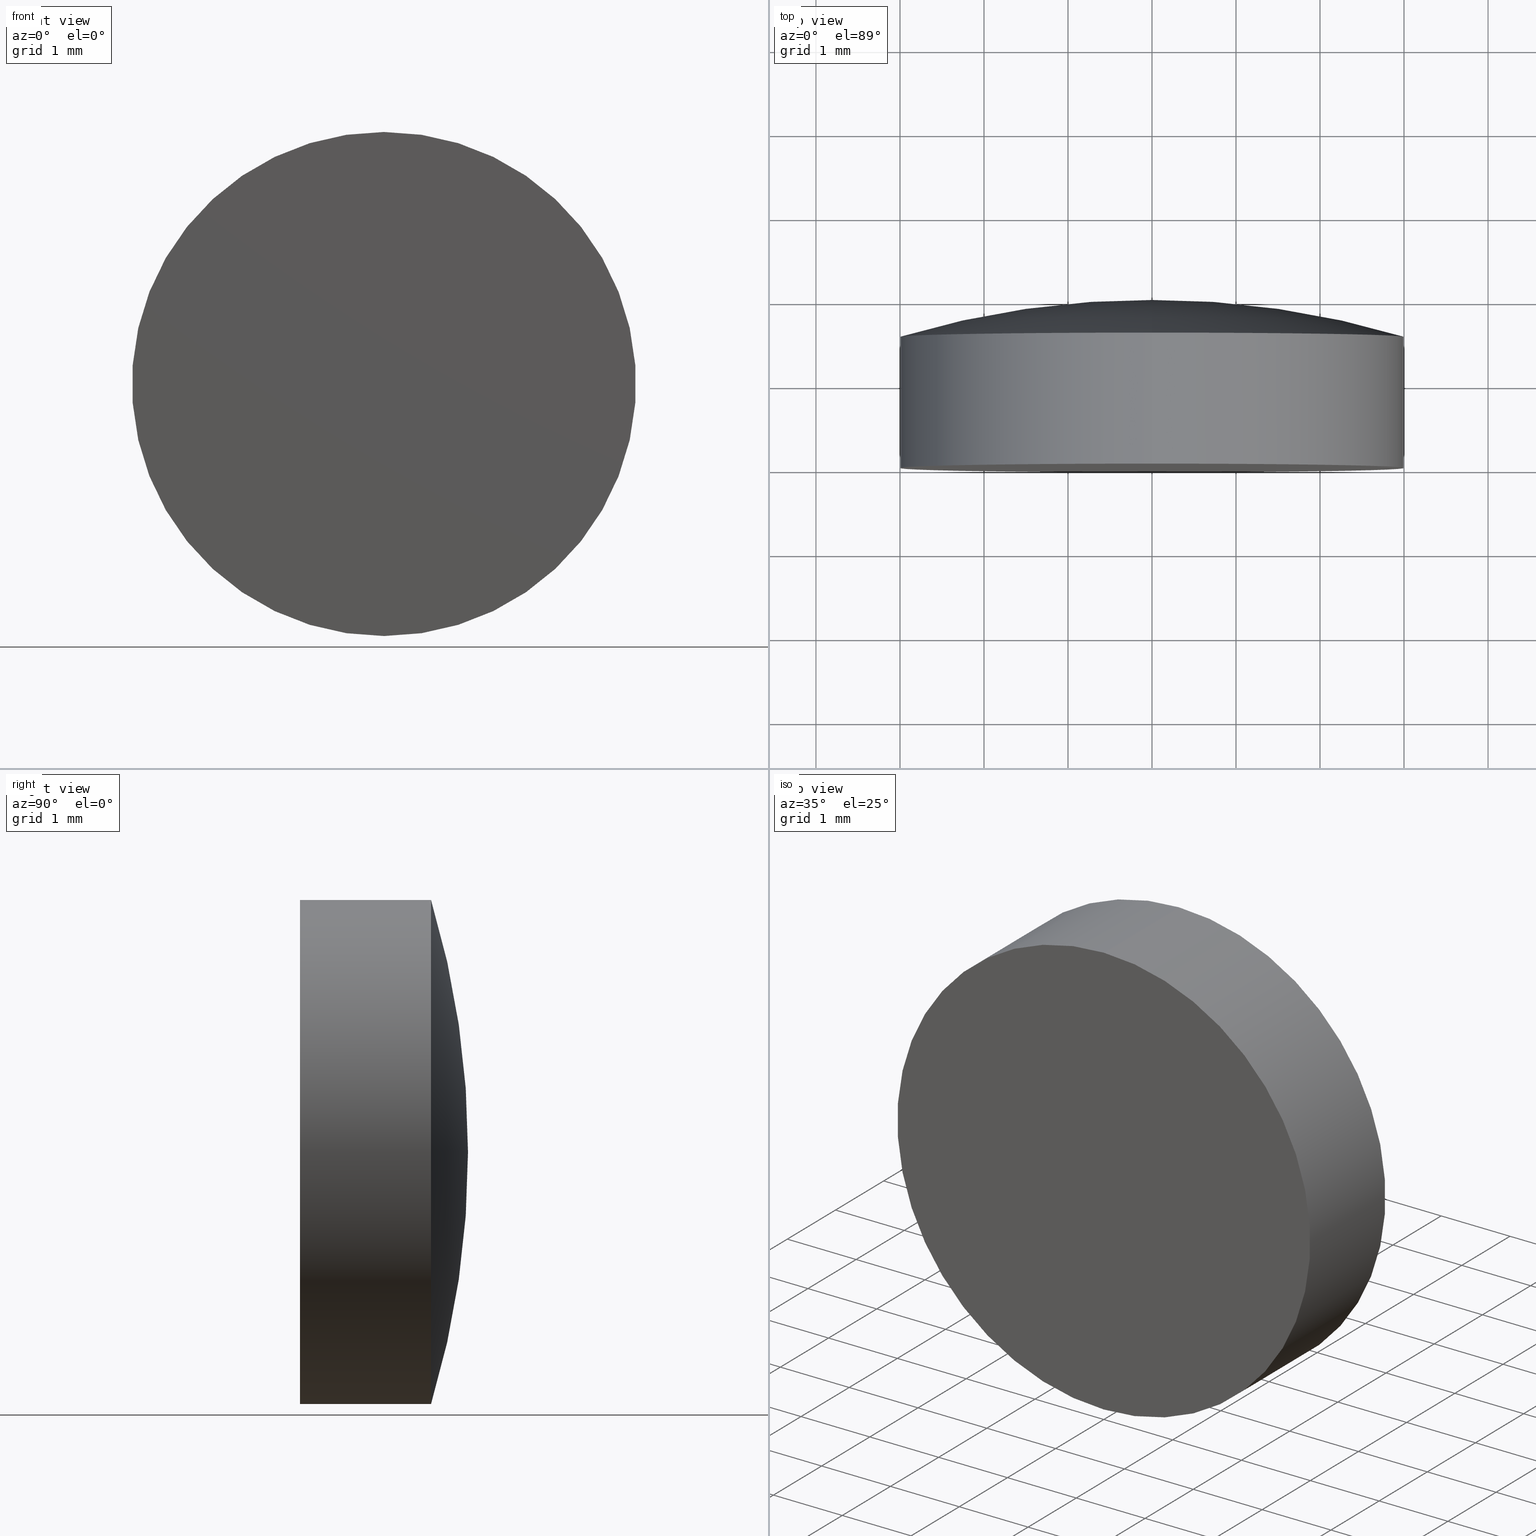
[diagram: canonical four-view strip — front | top / right | iso, engineering-drawing reading convention]
A machine part, canonical four-view strip (front | top / right | iso — engineering-drawing reading convention). The complete STEP part file that produces these views, byte-faithful:
ISO-10303-21;
HEADER;
FILE_DESCRIPTION (( 'STEP AP203' ),
    '1' );
FILE_NAME ('100540.STEP',
    '2024-05-08T08:49:46',
    ( '' ),
    ( '' ),
    'SwSTEP 2.0',
    'SolidWorks 2020',
    '' );
FILE_SCHEMA (( 'CONFIG_CONTROL_DESIGN' ));
ENDSEC;

DATA;
#1 = APPROVAL_ROLE ( '' ) ;
#2 = AXIS2_PLACEMENT_3D ( 'NONE', #20, #97, #160 ) ;
#3 = PRODUCT_RELATED_PRODUCT_CATEGORY ( 'detail', '', ( #123 ) ) ;
#4 = APPLICATION_CONTEXT ( 'configuration controlled 3d designs of mechanical parts and assemblies' ) ;
#5 = EDGE_CURVE ( 'NONE', #150, #135, #12, .T. ) ;
#6 = CYLINDRICAL_SURFACE ( 'NONE', #139, 3.000000000000000000 ) ;
#7 = ORIENTED_EDGE ( 'NONE', *, *, #175, .T. ) ;
#8 = APPLICATION_PROTOCOL_DEFINITION ( 'international standard', 'config_control_design', 1994, #16 ) ;
#9 = ORIENTED_EDGE ( 'NONE', *, *, #48, .F. ) ;
#10 = APPROVAL_PERSON_ORGANIZATION ( #32, #176, #92 ) ;
#11 = CC_DESIGN_DATE_AND_TIME_ASSIGNMENT ( #89, #102, ( #174 ) ) ;
#12 = CIRCLE ( 'NONE', #111, 3.000000000000000000 ) ;
#13 = PERSON_AND_ORGANIZATION ( #161, #50 ) ;
#14 = DIRECTION ( 'NONE',  ( 0.000000000000000000, 1.000000000000000000, 0.000000000000000000 ) ) ;
#15 = DIRECTION ( 'NONE',  ( -0.000000000000000000, -1.000000000000000000, -0.000000000000000000 ) ) ;
#16 = APPLICATION_CONTEXT ( 'configuration controlled 3d designs of mechanical parts and assemblies' ) ;
#17 = PERSON_AND_ORGANIZATION ( #161, #50 ) ;
#18 = ADVANCED_FACE ( 'NONE', ( #87 ), #40, .F. ) ;
#19 = LOCAL_TIME ( 16, 49, 46.00000000000000000, #188 ) ;
#20 = CARTESIAN_POINT ( 'NONE',  ( 0.000000000000000000, -8.359992091227860911, -0.01280115995324552884 ) ) ;
#21 = CARTESIAN_POINT ( 'NONE',  ( 0.000000000000000000, 0.000000000000000000, 0.000000000000000000 ) ) ;
#22 = CARTESIAN_POINT ( 'NONE',  ( 0.000000000000000000, 0.000000000000000000, 0.000000000000000000 ) ) ;
#23 = DIRECTION ( 'NONE',  ( -0.000000000000000000, -1.000000000000000000, -0.000000000000000000 ) ) ;
#24 = ORIENTED_EDGE ( 'NONE', *, *, #5, .F. ) ;
#25 = EDGE_CURVE ( 'NONE', #150, #28, #138, .T. ) ;
#26 = AXIS2_PLACEMENT_3D ( 'NONE', #194, #162, #38 ) ;
#27 = PERSON_AND_ORGANIZATION ( #161, #50 ) ;
#28 = VERTEX_POINT ( 'NONE', #166 ) ;
#29 = AXIS2_PLACEMENT_3D ( 'NONE', #200, #58, #31 ) ;
#30 = CALENDAR_DATE ( 2024, 8, 5 ) ;
#31 = DIRECTION ( 'NONE',  ( 0.000000000000000000, 0.000000000000000000, -1.000000000000000000 ) ) ;
#32 = PERSON_AND_ORGANIZATION ( #161, #50 ) ;
#33 = COORDINATED_UNIVERSAL_TIME_OFFSET ( 8, 0, .AHEAD. ) ;
#34 = LOCAL_TIME ( 16, 49, 46.00000000000000000, #33 ) ;
#35 = VECTOR ( 'NONE', #56, 1000.000000000000000 ) ;
#36 = CC_DESIGN_PERSON_AND_ORGANIZATION_ASSIGNMENT ( #27, #118, ( #73 ) ) ;
#37 = DIRECTION ( 'NONE',  ( -0.000000000000000000, -1.000000000000000000, -0.000000000000000000 ) ) ;
#38 = DIRECTION ( 'NONE',  ( 1.000000000000000000, 0.000000000000000000, 0.000000000000000000 ) ) ;
#39 = DIRECTION ( 'NONE',  ( -0.000000000000000000, -1.000000000000000000, -0.000000000000000000 ) ) ;
#40 = PLANE ( 'NONE',  #64 ) ;
#41 = COORDINATED_UNIVERSAL_TIME_OFFSET ( 8, 0, .AHEAD. ) ;
#42 = CARTESIAN_POINT ( 'NONE',  ( 0.000000000000000000, 0.000000000000000000, 0.000000000000000000 ) ) ;
#43 = APPROVAL_DATE_TIME ( #143, #176 ) ;
#44 = VERTEX_POINT ( 'NONE', #141 ) ;
#45 = CIRCLE ( 'NONE', #2, 10.35999999999999766 ) ;
#46 = TOROIDAL_SURFACE ( 'NONE', #151, 0.01280115995324552884, 10.35999999999999766 ) ;
#47 = CC_DESIGN_DATE_AND_TIME_ASSIGNMENT ( #140, #125, ( #73 ) ) ;
#48 = EDGE_CURVE ( 'NONE', #75, #28, #128, .T. ) ;
#49 = CIRCLE ( 'NONE', #159, 3.000000000000000000 ) ;
#50 = ORGANIZATION ( 'δָ��', 'δָ��', '' ) ;
#51 = AXIS2_PLACEMENT_3D ( 'NONE', #145, #52, #146 ) ;
#52 = DIRECTION ( 'NONE',  ( -0.000000000000000000, -1.000000000000000000, -0.000000000000000000 ) ) ;
#53 = ORIENTED_EDGE ( 'NONE', *, *, #25, .T. ) ;
#54 = CC_DESIGN_APPROVAL ( #176, ( #157 ) ) ;
#55 = PERSON_AND_ORGANIZATION ( #161, #50 ) ;
#56 = DIRECTION ( 'NONE',  ( -0.000000000000000000, -1.000000000000000000, -0.000000000000000000 ) ) ;
#57 = CALENDAR_DATE ( 2024, 8, 5 ) ;
#58 = DIRECTION ( 'NONE',  ( -0.000000000000000000, -1.000000000000000000, -0.000000000000000000 ) ) ;
#59 = SECURITY_CLASSIFICATION_LEVEL ( 'unclassified' ) ;
#60 = PERSON_AND_ORGANIZATION ( #161, #50 ) ;
#61 = DATE_AND_TIME ( #57, #136 ) ;
#62 =( GEOMETRIC_REPRESENTATION_CONTEXT ( 3 ) GLOBAL_UNCERTAINTY_ASSIGNED_CONTEXT ( ( #163 ) ) GLOBAL_UNIT_ASSIGNED_CONTEXT ( ( #193, #98, #134 ) ) REPRESENTATION_CONTEXT ( 'NONE', 'WORKASPACE' ) );
#63 = ADVANCED_FACE ( 'NONE', ( #68 ), #171, .T. ) ;
#64 = AXIS2_PLACEMENT_3D ( 'NONE', #164, #14, #198 ) ;
#65 = PRODUCT_DEFINITION_SHAPE ( 'NONE', 'NONE',  #73 ) ;
#66 = CARTESIAN_POINT ( 'NONE',  ( 0.000000000000000000, 1.559999999999999609, 0.000000000000000000 ) ) ;
#67 = DIRECTION ( 'NONE',  ( 0.000000000000000000, 0.000000000000000000, -1.000000000000000000 ) ) ;
#68 = FACE_OUTER_BOUND ( 'NONE', #168, .T. ) ;
#69 = LOCAL_TIME ( 16, 49, 46.00000000000000000, #74 ) ;
#70 = ORIENTED_EDGE ( 'NONE', *, *, #80, .T. ) ;
#71 = ORIENTED_EDGE ( 'NONE', *, *, #25, .F. ) ;
#72 = CIRCLE ( 'NONE', #109, 3.000000000000000000 ) ;
#73 = PRODUCT_DEFINITION ( 'δ֪', '', #157, #114 ) ;
#74 = COORDINATED_UNIVERSAL_TIME_OFFSET ( 8, 0, .AHEAD. ) ;
#75 = VERTEX_POINT ( 'NONE', #90 ) ;
#76 = PERSON_AND_ORGANIZATION_ROLE ( 'classification_officer' ) ;
#77 = LOCAL_TIME ( 16, 49, 46.00000000000000000, #41 ) ;
#78 = CC_DESIGN_PERSON_AND_ORGANIZATION_ASSIGNMENT ( #55, #148, ( #123 ) ) ;
#79 = CARTESIAN_POINT ( 'NONE',  ( 0.000000000000000000, 1.559999999999999609, -3.000000000000000000 ) ) ;
#80 = EDGE_CURVE ( 'NONE', #135, #75, #122, .T. ) ;
#81 = FACE_OUTER_BOUND ( 'NONE', #149, .T. ) ;
#82 = CARTESIAN_POINT ( 'NONE',  ( 1.567689956211541805E-18, -8.359992091227860911, 0.01280115995324552884 ) ) ;
#83 = CARTESIAN_POINT ( 'NONE',  ( 0.000000000000000000, 1.559999999999999609, 0.000000000000000000 ) ) ;
#84 = AXIS2_PLACEMENT_3D ( 'NONE', #82, #178, #177 ) ;
#85 = CC_DESIGN_PERSON_AND_ORGANIZATION_ASSIGNMENT ( #13, #76, ( #174 ) ) ;
#86 = APPROVAL_STATUS ( 'not_yet_approved' ) ;
#87 = FACE_OUTER_BOUND ( 'NONE', #147, .T. ) ;
#88 = VECTOR ( 'NONE', #23, 1000.000000000000000 ) ;
#89 = DATE_AND_TIME ( #30, #77 ) ;
#90 = CARTESIAN_POINT ( 'NONE',  ( 0.000000000000000000, 0.000000000000000000, -3.000000000000000000 ) ) ;
#91 = APPROVAL_STATUS ( 'not_yet_approved' ) ;
#92 = APPROVAL_ROLE ( '' ) ;
#93 = CC_DESIGN_APPROVAL ( #185, ( #174 ) ) ;
#94 = EDGE_CURVE ( 'NONE', #44, #135, #45, .T. ) ;
#95 = DIRECTION ( 'NONE',  ( -0.000000000000000000, -1.000000000000000000, -0.000000000000000000 ) ) ;
#96 = CLOSED_SHELL ( 'NONE', ( #191, #63, #18, #127, #120 ) ) ;
#97 = DIRECTION ( 'NONE',  ( -1.000000000000000000, 0.000000000000000000, 0.000000000000000000 ) ) ;
#98 =( NAMED_UNIT ( * ) PLANE_ANGLE_UNIT ( ) SI_UNIT ( $, .RADIAN. ) );
#99 = MECHANICAL_CONTEXT ( 'NONE', #4, 'mechanical' ) ;
#100 = ORIENTED_EDGE ( 'NONE', *, *, #94, .T. ) ;
#101 = ORIENTED_EDGE ( 'NONE', *, *, #175, .F. ) ;
#102 = DATE_TIME_ROLE ( 'classification_date' ) ;
#103 = ORIENTED_EDGE ( 'NONE', *, *, #137, .T. ) ;
#104 = ORIENTED_EDGE ( 'NONE', *, *, #137, .F. ) ;
#105 = TOROIDAL_SURFACE ( 'NONE', #51, 0.01280115995324552884, 10.35999999999999766 ) ;
#106 = APPROVAL_STATUS ( 'not_yet_approved' ) ;
#107 = MANIFOLD_SOLID_BREP ( '��ת2', #96 ) ;
#108 = APPROVAL_DATE_TIME ( #61, #170 ) ;
#109 = AXIS2_PLACEMENT_3D ( 'NONE', #66, #158, #165 ) ;
#110 = CC_DESIGN_PERSON_AND_ORGANIZATION_ASSIGNMENT ( #17, #152, ( #157 ) ) ;
#111 = AXIS2_PLACEMENT_3D ( 'NONE', #83, #39, #182 ) ;
#112 = CARTESIAN_POINT ( 'NONE',  ( 3.673940397442059868E-16, 1.559999999999999609, 3.000000000000000000 ) ) ;
#113 = APPLICATION_PROTOCOL_DEFINITION ( 'international standard', 'config_control_design', 1994, #4 ) ;
#114 = DESIGN_CONTEXT ( 'detailed design', #16, 'design' ) ;
#115 = EDGE_LOOP ( 'NONE', ( #195, #7, #104 ) ) ;
#116 = DIRECTION ( 'NONE',  ( 0.000000000000000000, 0.000000000000000000, -1.000000000000000000 ) ) ;
#117 = CC_DESIGN_PERSON_AND_ORGANIZATION_ASSIGNMENT ( #155, #183, ( #157 ) ) ;
#118 = PERSON_AND_ORGANIZATION_ROLE ( 'creator' ) ;
#119 = ORIENTED_EDGE ( 'NONE', *, *, #156, .T. ) ;
#120 = ADVANCED_FACE ( 'NONE', ( #196 ), #105, .T. ) ;
#121 = DATE_AND_TIME ( #167, #19 ) ;
#122 = LINE ( 'NONE', #154, #35 ) ;
#123 = PRODUCT ( '100540', '100540', '', ( #99 ) ) ;
#124 = PERSON_AND_ORGANIZATION ( #161, #50 ) ;
#125 = DATE_TIME_ROLE ( 'creation_date' ) ;
#126 = CC_DESIGN_SECURITY_CLASSIFICATION ( #174, ( #157 ) ) ;
#127 = ADVANCED_FACE ( 'NONE', ( #81 ), #6, .T. ) ;
#128 = CIRCLE ( 'NONE', #29, 3.000000000000000000 ) ;
#129 = ADVANCED_BREP_SHAPE_REPRESENTATION ( '100540', ( #107, #26 ), #62 ) ;
#130 = CARTESIAN_POINT ( 'NONE',  ( 0.000000000000000000, -8.359992091227860911, 0.000000000000000000 ) ) ;
#131 = FACE_OUTER_BOUND ( 'NONE', #115, .T. ) ;
#132 = AXIS2_PLACEMENT_3D ( 'NONE', #42, #15, #116 ) ;
#133 = ORIENTED_EDGE ( 'NONE', *, *, #80, .F. ) ;
#134 =( NAMED_UNIT ( * ) SI_UNIT ( $, .STERADIAN. ) SOLID_ANGLE_UNIT ( ) );
#135 = VERTEX_POINT ( 'NONE', #79 ) ;
#136 = LOCAL_TIME ( 16, 49, 46.00000000000000000, #173 ) ;
#137 = EDGE_CURVE ( 'NONE', #135, #150, #72, .T. ) ;
#138 = LINE ( 'NONE', #153, #88 ) ;
#139 = AXIS2_PLACEMENT_3D ( 'NONE', #22, #95, #67 ) ;
#140 = DATE_AND_TIME ( #172, #34 ) ;
#141 = CARTESIAN_POINT ( 'NONE',  ( 2.744386749103933099E-16, 2.000000000000000000, 0.000000000000000000 ) ) ;
#142 = APPROVAL_DATE_TIME ( #121, #185 ) ;
#143 = DATE_AND_TIME ( #189, #69 ) ;
#144 = CIRCLE ( 'NONE', #84, 10.35999999999999766 ) ;
#145 = CARTESIAN_POINT ( 'NONE',  ( 0.000000000000000000, -8.359992091227860911, 0.000000000000000000 ) ) ;
#146 = DIRECTION ( 'NONE',  ( 0.000000000000000000, 0.000000000000000000, -1.000000000000000000 ) ) ;
#147 = EDGE_LOOP ( 'NONE', ( #184, #119 ) ) ;
#148 = PERSON_AND_ORGANIZATION_ROLE ( 'design_owner' ) ;
#149 = EDGE_LOOP ( 'NONE', ( #71, #201, #70, #186 ) ) ;
#150 = VERTEX_POINT ( 'NONE', #112 ) ;
#151 = AXIS2_PLACEMENT_3D ( 'NONE', #130, #37, #192 ) ;
#152 = PERSON_AND_ORGANIZATION_ROLE ( 'design_supplier' ) ;
#153 = CARTESIAN_POINT ( 'NONE',  ( 3.673940397442059868E-16, 0.000000000000000000, 3.000000000000000000 ) ) ;
#154 = CARTESIAN_POINT ( 'NONE',  ( 0.000000000000000000, 0.000000000000000000, -3.000000000000000000 ) ) ;
#155 = PERSON_AND_ORGANIZATION ( #161, #50 ) ;
#156 = EDGE_CURVE ( 'NONE', #28, #75, #49, .T. ) ;
#157 = PRODUCT_DEFINITION_FORMATION_WITH_SPECIFIED_SOURCE ( '�κ�', '', #123, .NOT_KNOWN. ) ;
#158 = DIRECTION ( 'NONE',  ( -0.000000000000000000, -1.000000000000000000, -0.000000000000000000 ) ) ;
#159 = AXIS2_PLACEMENT_3D ( 'NONE', #21, #181, #179 ) ;
#160 = DIRECTION ( 'NONE',  ( 0.000000000000000000, 0.000000000000000000, 1.000000000000000000 ) ) ;
#161 = PERSON ( 'δָ��', 'δָ��', 'δָ��', ('δָ��'), ('δָ��'), ('δָ��') ) ;
#162 = DIRECTION ( 'NONE',  ( 0.000000000000000000, 0.000000000000000000, 1.000000000000000000 ) ) ;
#163 = UNCERTAINTY_MEASURE_WITH_UNIT (LENGTH_MEASURE( 1.000000000000000082E-05 ), #193, 'distance_accuracy_value', 'NONE');
#164 = CARTESIAN_POINT ( 'NONE',  ( 0.000000000000000000, 0.000000000000000000, 0.000000000000000000 ) ) ;
#165 = DIRECTION ( 'NONE',  ( 0.000000000000000000, 0.000000000000000000, -1.000000000000000000 ) ) ;
#166 = CARTESIAN_POINT ( 'NONE',  ( 3.673940397442059868E-16, 0.000000000000000000, 3.000000000000000000 ) ) ;
#167 = CALENDAR_DATE ( 2024, 8, 5 ) ;
#168 = EDGE_LOOP ( 'NONE', ( #103, #53, #9, #133 ) ) ;
#169 = APPROVAL_PERSON_ORGANIZATION ( #124, #170, #199 ) ;
#170 = APPROVAL ( #106, 'δָ��' ) ;
#171 = CYLINDRICAL_SURFACE ( 'NONE', #132, 3.000000000000000000 ) ;
#172 = CALENDAR_DATE ( 2024, 8, 5 ) ;
#173 = COORDINATED_UNIVERSAL_TIME_OFFSET ( 8, 0, .AHEAD. ) ;
#174 = SECURITY_CLASSIFICATION ( '', '', #59 ) ;
#175 = EDGE_CURVE ( 'NONE', #44, #150, #144, .T. ) ;
#176 = APPROVAL ( #91, 'δָ��' ) ;
#177 = DIRECTION ( 'NONE',  ( -1.224646799147353207E-16, 0.000000000000000000, -1.000000000000000000 ) ) ;
#178 = DIRECTION ( 'NONE',  ( 1.000000000000000000, 0.000000000000000000, -1.224646799147353207E-16 ) ) ;
#179 = DIRECTION ( 'NONE',  ( 0.000000000000000000, 0.000000000000000000, -1.000000000000000000 ) ) ;
#180 = EDGE_LOOP ( 'NONE', ( #101, #100, #24 ) ) ;
#181 = DIRECTION ( 'NONE',  ( -0.000000000000000000, -1.000000000000000000, -0.000000000000000000 ) ) ;
#182 = DIRECTION ( 'NONE',  ( 0.000000000000000000, 0.000000000000000000, -1.000000000000000000 ) ) ;
#183 = PERSON_AND_ORGANIZATION_ROLE ( 'creator' ) ;
#184 = ORIENTED_EDGE ( 'NONE', *, *, #48, .T. ) ;
#185 = APPROVAL ( #86, 'δָ��' ) ;
#186 = ORIENTED_EDGE ( 'NONE', *, *, #156, .F. ) ;
#187 = SHAPE_DEFINITION_REPRESENTATION ( #65, #129 ) ;
#188 = COORDINATED_UNIVERSAL_TIME_OFFSET ( 8, 0, .AHEAD. ) ;
#189 = CALENDAR_DATE ( 2024, 8, 5 ) ;
#190 = CC_DESIGN_APPROVAL ( #170, ( #73 ) ) ;
#191 = ADVANCED_FACE ( 'NONE', ( #131 ), #46, .T. ) ;
#192 = DIRECTION ( 'NONE',  ( 0.000000000000000000, 0.000000000000000000, -1.000000000000000000 ) ) ;
#193 =( LENGTH_UNIT ( ) NAMED_UNIT ( * ) SI_UNIT ( .MILLI., .METRE. ) );
#194 = CARTESIAN_POINT ( 'NONE',  ( 0.000000000000000000, 0.000000000000000000, 0.000000000000000000 ) ) ;
#195 = ORIENTED_EDGE ( 'NONE', *, *, #94, .F. ) ;
#196 = FACE_OUTER_BOUND ( 'NONE', #180, .T. ) ;
#197 = APPROVAL_PERSON_ORGANIZATION ( #60, #185, #1 ) ;
#198 = DIRECTION ( 'NONE',  ( 0.000000000000000000, -0.000000000000000000, 1.000000000000000000 ) ) ;
#199 = APPROVAL_ROLE ( '' ) ;
#200 = CARTESIAN_POINT ( 'NONE',  ( 0.000000000000000000, 0.000000000000000000, 0.000000000000000000 ) ) ;
#201 = ORIENTED_EDGE ( 'NONE', *, *, #5, .T. ) ;
ENDSEC;
END-ISO-10303-21;
